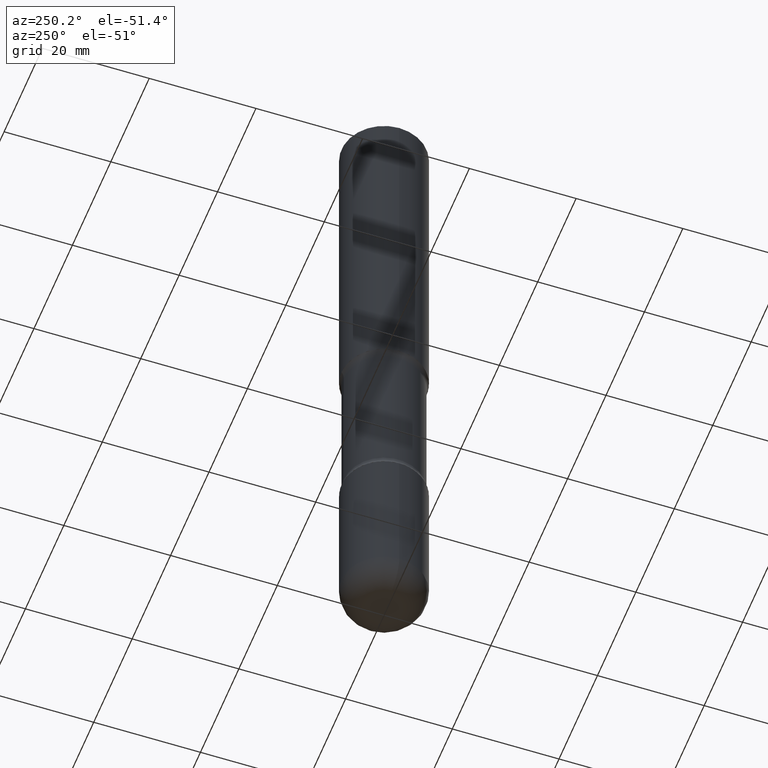
[diagram: clean part render]
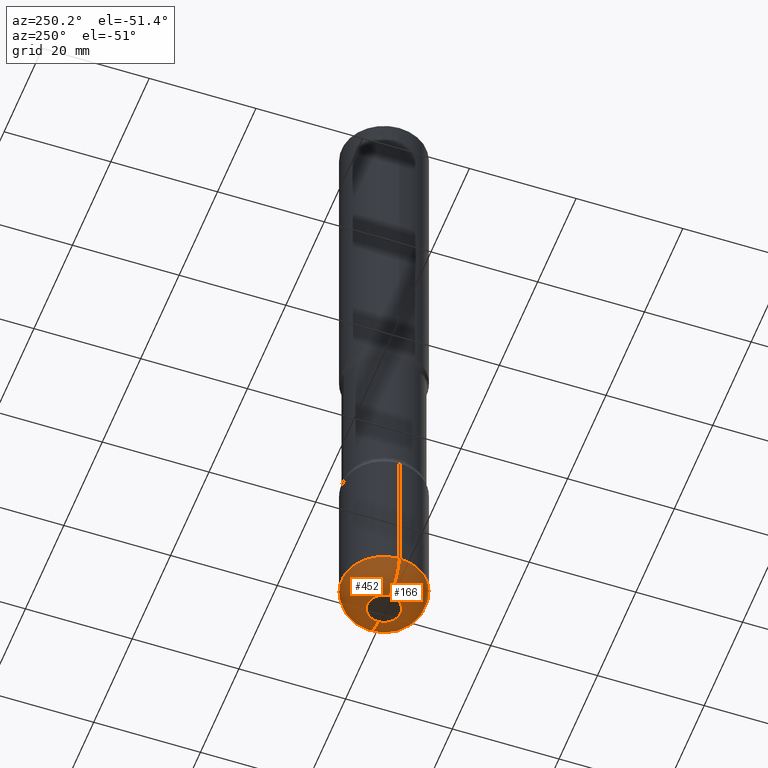
[diagram: same view with one multi-face feature highlighted, each face labeled with its STEP entity id]
A machine part, auxiliary view. The highlighted faces form ONE feature: a constant-radius fillet chain: 2 tangent blend faces with common blend radius 4.826 mm. The faces share edges in the B-rep.
Their STEP definitions:
[1] entity #452 (Torus):
#16 = DIRECTION ( 'NONE',  ( 1.000000000000000000, -6.982962677686264344E-15, 0.000000000000000000 ) ) ;
#68 = ORIENTED_EDGE ( 'NONE', *, *, #91, .F. ) ;
#91 = EDGE_CURVE ( 'NONE', #238, #102, #144, .T. ) ;
#102 = VERTEX_POINT ( 'NONE', #517 ) ;
#109 = AXIS2_PLACEMENT_3D ( 'NONE', #460, #542, #379 ) ;
#128 = ORIENTED_EDGE ( 'NONE', *, *, #543, .T. ) ;
#140 = CIRCLE ( 'NONE', #545, 0.1899999999999998634 ) ;
#144 = CIRCLE ( 'NONE', #381, 0.3125000000000002220 ) ;
#206 = ORIENTED_EDGE ( 'NONE', *, *, #501, .T. ) ;
#232 = DIRECTION ( 'NONE',  ( -2.445468806185136597E-29, 3.491481338843145583E-15, 1.000000000000000000 ) ) ;
#233 = CARTESIAN_POINT ( 'NONE',  ( 1.176270495775050811E-28, -1.679402523983553013E-14, -4.810000000000000497 ) ) ;
#238 = VERTEX_POINT ( 'NONE', #311 ) ;
#239 = CARTESIAN_POINT ( 'NONE',  ( 1.176270495775050811E-28, -1.679402523983553013E-14, -4.810000000000000497 ) ) ;
#268 = CARTESIAN_POINT ( 'NONE',  ( -0.1225000000000003308, -1.558028551674741034E-14, -5.000000000000000000 ) ) ;
#273 = FACE_OUTER_BOUND ( 'NONE', #299, .T. ) ;
#278 = CARTESIAN_POINT ( 'NONE',  ( 1.222734403092568523E-28, -1.745740669421572989E-14, -5.000000000000000000 ) ) ;
#299 = EDGE_LOOP ( 'NONE', ( #128, #206, #68, #429 ) ) ;
#311 = CARTESIAN_POINT ( 'NONE',  ( 0.3125000000000001665, -1.897620107661249005E-14, -4.810000000000000497 ) ) ;
#324 = DIRECTION ( 'NONE',  ( -2.445468806185136597E-29, 3.491481338843145583E-15, 1.000000000000000000 ) ) ;
#327 = AXIS2_PLACEMENT_3D ( 'NONE', #239, #324, #418 ) ;
#361 = DIRECTION ( 'NONE',  ( 1.000000000000000000, -6.982962677686262766E-15, 0.000000000000000000 ) ) ;
#379 = DIRECTION ( 'NONE',  ( -1.000000000000000000, 7.105427357601003436E-15, 0.000000000000000000 ) ) ;
#381 = AXIS2_PLACEMENT_3D ( 'NONE', #233, #414, #16 ) ;
#383 = VERTEX_POINT ( 'NONE', #268 ) ;
#410 = CIRCLE ( 'NONE', #444, 0.1225000000000003308 ) ;
#411 = CARTESIAN_POINT ( 'NONE',  ( 0.1225000000000003031, -1.764943816785210001E-14, -4.810000000000000497 ) ) ;
#414 = DIRECTION ( 'NONE',  ( -2.445468806185136597E-29, 3.491481338843145583E-15, 1.000000000000000000 ) ) ;
#418 = DIRECTION ( 'NONE',  ( 1.000000000000000000, -6.982962677686265922E-15, 4.883557194083112340E-29 ) ) ;
#425 = VERTEX_POINT ( 'NONE', #454 ) ;
#429 = ORIENTED_EDGE ( 'NONE', *, *, #508, .F. ) ;
#444 = AXIS2_PLACEMENT_3D ( 'NONE', #278, #232, #361 ) ;
#452 = ADVANCED_FACE ( 'NONE', ( #273 ), #555, .T. ) ;
#454 = CARTESIAN_POINT ( 'NONE',  ( 0.1225000000000003308, -1.831281962223229977E-14, -5.000000000000000000 ) ) ;
#460 = CARTESIAN_POINT ( 'NONE',  ( -0.1225000000000003031, -1.592361038852940387E-14, -4.810000000000000497 ) ) ;
#490 = DIRECTION ( 'NONE',  ( -6.982962677686266711E-15, -1.000000000000000000, 3.491481338843145583E-15 ) ) ;
#495 = CIRCLE ( 'NONE', #109, 0.1899999999999998634 ) ;
#496 = DIRECTION ( 'NONE',  ( 1.000000000000000000, -6.982962677686266711E-15, 0.000000000000000000 ) ) ;
#501 = EDGE_CURVE ( 'NONE', #383, #102, #495, .T. ) ;
#508 = EDGE_CURVE ( 'NONE', #425, #238, #140, .T. ) ;
#517 = CARTESIAN_POINT ( 'NONE',  ( -0.3125000000000001665, -1.457357919058521389E-14, -4.810000000000000497 ) ) ;
#542 = DIRECTION ( 'NONE',  ( 7.105427357601001859E-15, 1.000000000000000000, -3.491481338843145583E-15 ) ) ;
#543 = EDGE_CURVE ( 'NONE', #425, #383, #410, .T. ) ;
#545 = AXIS2_PLACEMENT_3D ( 'NONE', #411, #490, #496 ) ;
#555 = TOROIDAL_SURFACE ( 'NONE', #327, 0.1225000000000003031, 0.1899999999999998912 ) ;
[2] entity #166 (Torus):
#23 = DIRECTION ( 'NONE',  ( -2.445468806185136597E-29, 3.491481338843145583E-15, 1.000000000000000000 ) ) ;
#29 = DIRECTION ( 'NONE',  ( 1.000000000000000000, -6.982962677686262766E-15, 0.000000000000000000 ) ) ;
#64 = EDGE_CURVE ( 'NONE', #102, #238, #106, .T. ) ;
#72 = ORIENTED_EDGE ( 'NONE', *, *, #501, .F. ) ;
#79 = AXIS2_PLACEMENT_3D ( 'NONE', #540, #23, #29 ) ;
#102 = VERTEX_POINT ( 'NONE', #517 ) ;
#106 = CIRCLE ( 'NONE', #455, 0.3125000000000002220 ) ;
#109 = AXIS2_PLACEMENT_3D ( 'NONE', #460, #542, #379 ) ;
#113 = ORIENTED_EDGE ( 'NONE', *, *, #508, .T. ) ;
#140 = CIRCLE ( 'NONE', #545, 0.1899999999999998634 ) ;
#143 = FACE_OUTER_BOUND ( 'NONE', #385, .T. ) ;
#156 = DIRECTION ( 'NONE',  ( 1.000000000000000000, -6.982962677686265922E-15, 4.883557194083112340E-29 ) ) ;
#161 = ORIENTED_EDGE ( 'NONE', *, *, #507, .T. ) ;
#163 = DIRECTION ( 'NONE',  ( -2.445468806185136597E-29, 3.491481338843145583E-15, 1.000000000000000000 ) ) ;
#166 = ADVANCED_FACE ( 'NONE', ( #143 ), #318, .T. ) ;
#238 = VERTEX_POINT ( 'NONE', #311 ) ;
#240 = DIRECTION ( 'NONE',  ( -2.445468806185136597E-29, 3.491481338843145583E-15, 1.000000000000000000 ) ) ;
#268 = CARTESIAN_POINT ( 'NONE',  ( -0.1225000000000003308, -1.558028551674741034E-14, -5.000000000000000000 ) ) ;
#291 = CARTESIAN_POINT ( 'NONE',  ( 1.176270495775050811E-28, -1.679402523983553013E-14, -4.810000000000000497 ) ) ;
#293 = AXIS2_PLACEMENT_3D ( 'NONE', #335, #163, #156 ) ;
#311 = CARTESIAN_POINT ( 'NONE',  ( 0.3125000000000001665, -1.897620107661249005E-14, -4.810000000000000497 ) ) ;
#318 = TOROIDAL_SURFACE ( 'NONE', #293, 0.1225000000000003031, 0.1899999999999998912 ) ;
#321 = CIRCLE ( 'NONE', #79, 0.1225000000000003308 ) ;
#335 = CARTESIAN_POINT ( 'NONE',  ( 1.176270495775050811E-28, -1.679402523983553013E-14, -4.810000000000000497 ) ) ;
#342 = DIRECTION ( 'NONE',  ( 1.000000000000000000, -6.982962677686264344E-15, 0.000000000000000000 ) ) ;
#379 = DIRECTION ( 'NONE',  ( -1.000000000000000000, 7.105427357601003436E-15, 0.000000000000000000 ) ) ;
#383 = VERTEX_POINT ( 'NONE', #268 ) ;
#385 = EDGE_LOOP ( 'NONE', ( #72, #161, #113, #541 ) ) ;
#411 = CARTESIAN_POINT ( 'NONE',  ( 0.1225000000000003031, -1.764943816785210001E-14, -4.810000000000000497 ) ) ;
#425 = VERTEX_POINT ( 'NONE', #454 ) ;
#454 = CARTESIAN_POINT ( 'NONE',  ( 0.1225000000000003308, -1.831281962223229977E-14, -5.000000000000000000 ) ) ;
#455 = AXIS2_PLACEMENT_3D ( 'NONE', #291, #240, #342 ) ;
#460 = CARTESIAN_POINT ( 'NONE',  ( -0.1225000000000003031, -1.592361038852940387E-14, -4.810000000000000497 ) ) ;
#490 = DIRECTION ( 'NONE',  ( -6.982962677686266711E-15, -1.000000000000000000, 3.491481338843145583E-15 ) ) ;
#495 = CIRCLE ( 'NONE', #109, 0.1899999999999998634 ) ;
#496 = DIRECTION ( 'NONE',  ( 1.000000000000000000, -6.982962677686266711E-15, 0.000000000000000000 ) ) ;
#501 = EDGE_CURVE ( 'NONE', #383, #102, #495, .T. ) ;
#507 = EDGE_CURVE ( 'NONE', #383, #425, #321, .T. ) ;
#508 = EDGE_CURVE ( 'NONE', #425, #238, #140, .T. ) ;
#517 = CARTESIAN_POINT ( 'NONE',  ( -0.3125000000000001665, -1.457357919058521389E-14, -4.810000000000000497 ) ) ;
#540 = CARTESIAN_POINT ( 'NONE',  ( 1.222734403092568523E-28, -1.745740669421572989E-14, -5.000000000000000000 ) ) ;
#541 = ORIENTED_EDGE ( 'NONE', *, *, #64, .F. ) ;
#542 = DIRECTION ( 'NONE',  ( 7.105427357601001859E-15, 1.000000000000000000, -3.491481338843145583E-15 ) ) ;
#545 = AXIS2_PLACEMENT_3D ( 'NONE', #411, #490, #496 ) ;